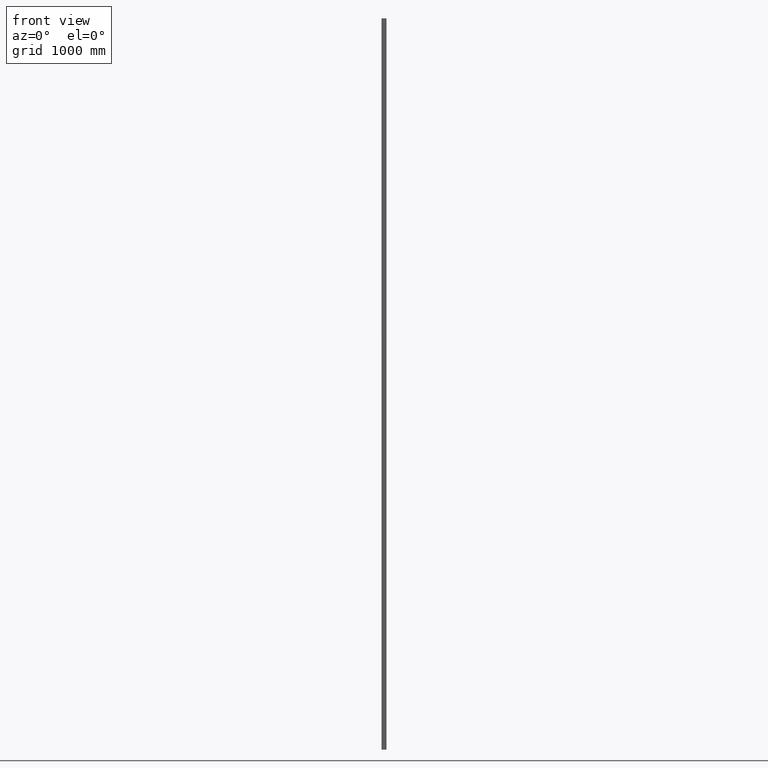
[diagram: clean part render]
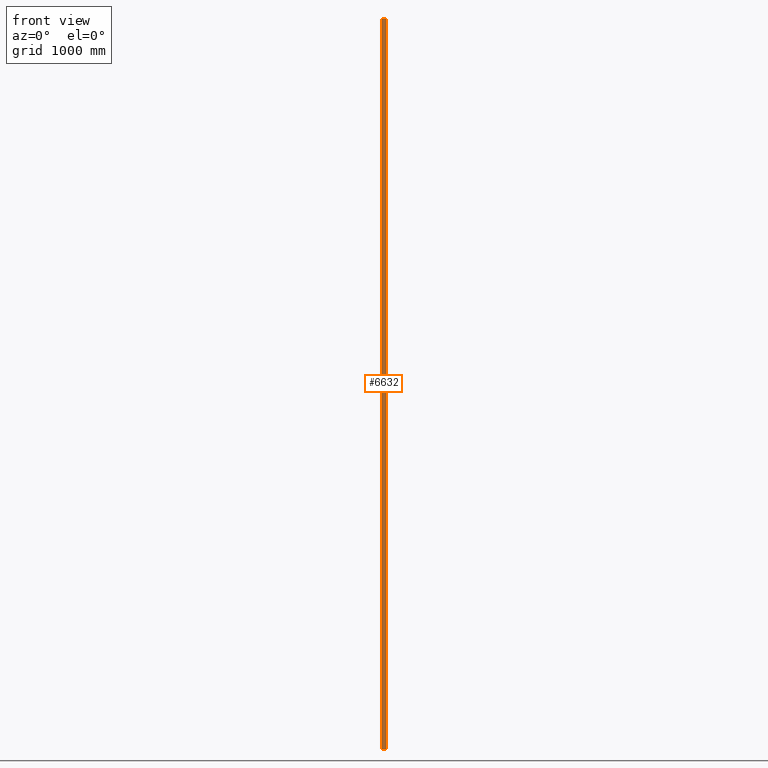
[diagram: same view with one face highlighted and labeled with its STEP entity id]
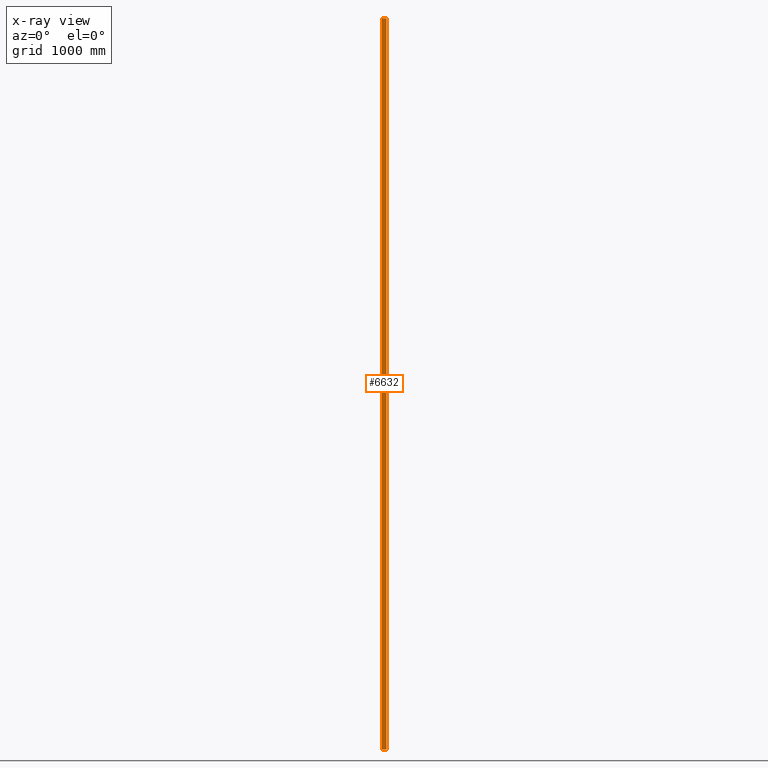
[diagram: x-ray of the same camera — body ghosted, the highlighted face saturated]
A machine part, front view. The second image highlights one B-rep face of the part: STEP entity #6632.
The next image is the same camera in x-ray: the body ghosted, the highlighted face saturated — about 0% of this face is hidden behind the body in this view.
In plain terms, the highlighted planar face has unit normal (0, 1, 0).
Its self-contained STEP definition (entity closure, byte-faithful):
#1120 = LINE ( 'NONE', #13288, #7071 ) ;
#1156 = EDGE_CURVE ( 'NONE', #7459, #10796, #1120, .T. ) ;
#1851 = CARTESIAN_POINT ( 'NONE',  ( 4.885781668966657800, 0.0000000000000000000, -3000.000000000000000 ) ) ;
#1983 = CARTESIAN_POINT ( 'NONE',  ( 4.885781668966657800, 0.0000000000000000000, 3000.000000000000000 ) ) ;
#3243 = LINE ( 'NONE', #7228, #7666 ) ;
#3760 = FACE_OUTER_BOUND ( 'NONE', #7700, .T. ) ;
#3857 = EDGE_CURVE ( 'NONE', #4452, #10796, #3948, .T. ) ;
#3948 = LINE ( 'NONE', #1851, #6154 ) ;
#4362 = CARTESIAN_POINT ( 'NONE',  ( 4.885781668966657800, 0.0000000000000000000, 3000.000000000000000 ) ) ;
#4452 = VERTEX_POINT ( 'NONE', #11502 ) ;
#4510 = ORIENTED_EDGE ( 'NONE', *, *, #13038, .T. ) ;
#4512 = VERTEX_POINT ( 'NONE', #4362 ) ;
#6154 = VECTOR ( 'NONE', #8383, 1000.000000000000000 ) ;
#6240 = ORIENTED_EDGE ( 'NONE', *, *, #3857, .T. ) ;
#6497 = ORIENTED_EDGE ( 'NONE', *, *, #7719, .F. ) ;
#6586 = VECTOR ( 'NONE', #13877, 1000.000000000000000 ) ;
#6632 = ADVANCED_FACE ( 'NONE', ( #3760 ), #9292, .F. ) ;
#6958 = CARTESIAN_POINT ( 'NONE',  ( 41.90000000001872800, 0.0000000000000000000, 3000.000000000000000 ) ) ;
#7040 = CARTESIAN_POINT ( 'NONE',  ( 4.885781668966657800, 0.0000000000000000000, 3000.000000000000000 ) ) ;
#7071 = VECTOR ( 'NONE', #12400, 1000.000000000000000 ) ;
#7097 = DIRECTION ( 'NONE',  ( 0.0000000000000000000, 1.000000000000000000, 0.0000000000000000000 ) ) ;
#7228 = CARTESIAN_POINT ( 'NONE',  ( 4.885781668966657800, 0.0000000000000000000, 3000.000000000000000 ) ) ;
#7459 = VERTEX_POINT ( 'NONE', #6958 ) ;
#7666 = VECTOR ( 'NONE', #11445, 1000.000000000000000 ) ;
#7700 = EDGE_LOOP ( 'NONE', ( #6240, #10097, #6497, #4510 ) ) ;
#7719 = EDGE_CURVE ( 'NONE', #4512, #7459, #3243, .T. ) ;
#8383 = DIRECTION ( 'NONE',  ( 1.000000000000000000, 0.0000000000000000000, 0.0000000000000000000 ) ) ;
#9292 = PLANE ( 'NONE',  #12254 ) ;
#10097 = ORIENTED_EDGE ( 'NONE', *, *, #1156, .F. ) ;
#10430 = DIRECTION ( 'NONE',  ( 0.0000000000000000000, -0.0000000000000000000, 1.000000000000000000 ) ) ;
#10796 = VERTEX_POINT ( 'NONE', #12639 ) ;
#11282 = LINE ( 'NONE', #1983, #6586 ) ;
#11445 = DIRECTION ( 'NONE',  ( 1.000000000000000000, 0.0000000000000000000, 0.0000000000000000000 ) ) ;
#11502 = CARTESIAN_POINT ( 'NONE',  ( 4.885781668966657800, 0.0000000000000000000, -3000.000000000000000 ) ) ;
#12254 = AXIS2_PLACEMENT_3D ( 'NONE', #7040, #7097, #10430 ) ;
#12400 = DIRECTION ( 'NONE',  ( -0.0000000000000000000, -0.0000000000000000000, -1.000000000000000000 ) ) ;
#12639 = CARTESIAN_POINT ( 'NONE',  ( 41.90000000001872800, 0.0000000000000000000, -3000.000000000000000 ) ) ;
#13038 = EDGE_CURVE ( 'NONE', #4512, #4452, #11282, .T. ) ;
#13288 = CARTESIAN_POINT ( 'NONE',  ( 41.90000000001872800, 0.0000000000000000000, 3000.000000000000000 ) ) ;
#13877 = DIRECTION ( 'NONE',  ( -0.0000000000000000000, -0.0000000000000000000, -1.000000000000000000 ) ) ;